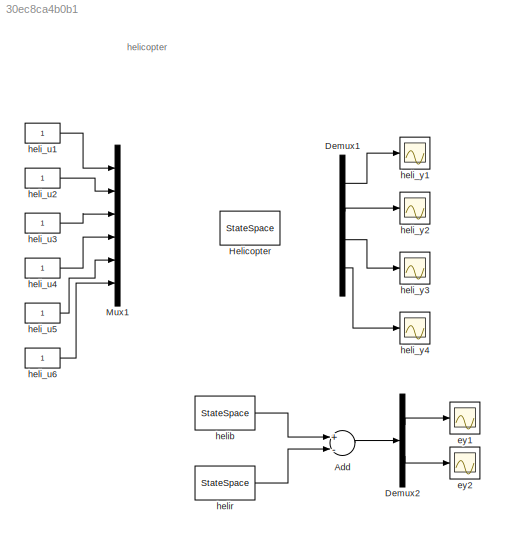
MODEL slx_30ec8ca4b0b1
KIND model
BLOCK [Sum] Add
  InputSameDT = off
  Inputs = +-
  OutDataTypeStr = Inherit: Inherit via internal rule
  Ports = [2, 1]
  SaturateOnIntegerOverflow = off
BLOCK [Demux] Demux1
  DisplayOption = bar
  Ports = [1, 4]
BLOCK [Demux] Demux2
  DisplayOption = bar
  Outputs = 2
  Ports = [1, 2]
BLOCK [StateSpace] Helicopter
  A = heli_sys.sys.a
  B = heli_sys.sys.b
  C = heli_sys.sys.c
  D = heli_sys.sys.d
  Ports = [1, 1]
  X0 = heli_sys.x0_lb
BLOCK [Mux] Mux1
  DisplayOption = bar
  Inputs = 6
  Ports = [6, 1]
BLOCK [Scope] ey1
  Floating = off
  NumInputPorts = 1
  Ports = [1]
  ShowLegends = off
BLOCK [Scope] ey2
  Floating = off
  NumInputPorts = 1
  Ports = [1]
  SaveName = ScopeData1
  ShowLegends = off
BLOCK [Constant] heli_u1
BLOCK [Constant] heli_u2
BLOCK [Constant] heli_u3
BLOCK [Constant] heli_u4
BLOCK [Constant] heli_u5
BLOCK [Constant] heli_u6
BLOCK [Scope] heli_y1
  Floating = off
  NumInputPorts = 1
  Ports = [1]
  SaveName = ScopeData8
  ShowLegends = off
BLOCK [Scope] heli_y2
  Floating = off
  NumInputPorts = 1
  Ports = [1]
  SaveName = ScopeData9
  ShowLegends = off
BLOCK [Scope] heli_y3
  Floating = off
  NumInputPorts = 1
  Ports = [1]
  SaveName = ScopeData10
  ShowLegends = off
BLOCK [Scope] heli_y4
  Floating = off
  NumInputPorts = 1
  Ports = [1]
  SaveName = ScopeData11
  ShowLegends = off
BLOCK [StateSpace] helib
  A = sysb.sys.a
  B = sysb.sys.b
  C = sysb.sys.c
  D = sysb.sys.d
  Ports = [1, 1]
  X0 = sysb_x0
BLOCK [StateSpace] helir
  A = sysr.sys.a
  B = sysr.sys.b
  C = sysr.sys.c
  D = sysr.sys.d
  Ports = [1, 1]
  X0 = sysr_x0
ANNOTATION (root): helicopter
LINE Add:1 -> Demux2:1
LINE Demux1:1 -> heli_y1:1
LINE Demux1:2 -> heli_y2:1
LINE Demux1:3 -> heli_y3:1
LINE Demux1:4 -> heli_y4:1
LINE Demux2:1 -> ey1:1
LINE Demux2:2 -> ey2:1
LINE heli_u1:1 -> Mux1:1
LINE heli_u2:1 -> Mux1:2
LINE heli_u3:1 -> Mux1:3
LINE heli_u4:1 -> Mux1:4
LINE heli_u5:1 -> Mux1:5
LINE heli_u6:1 -> Mux1:6
LINE helib:1 -> Add:1
LINE helir:1 -> Add:2
